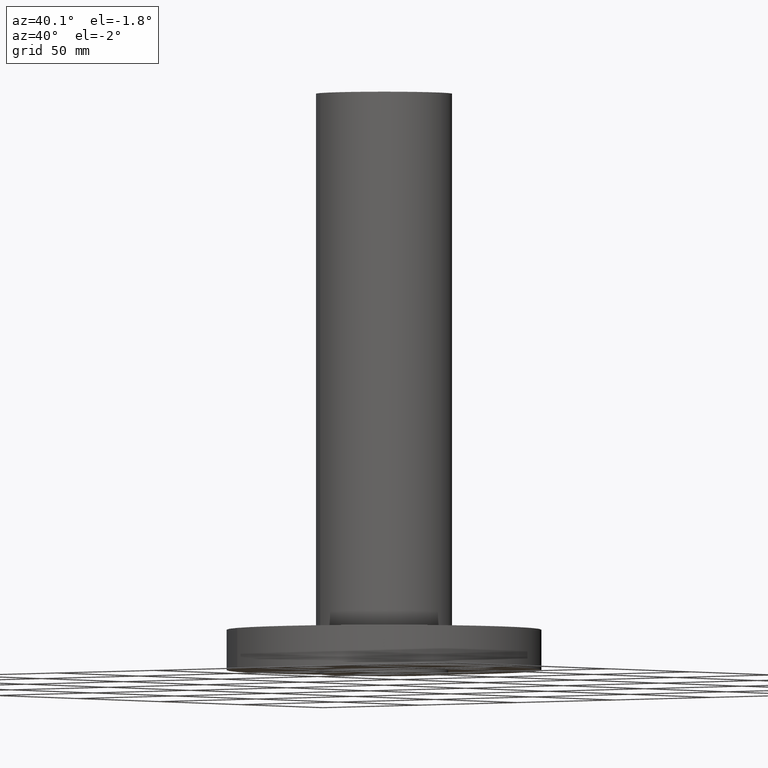
[diagram: clean part render]
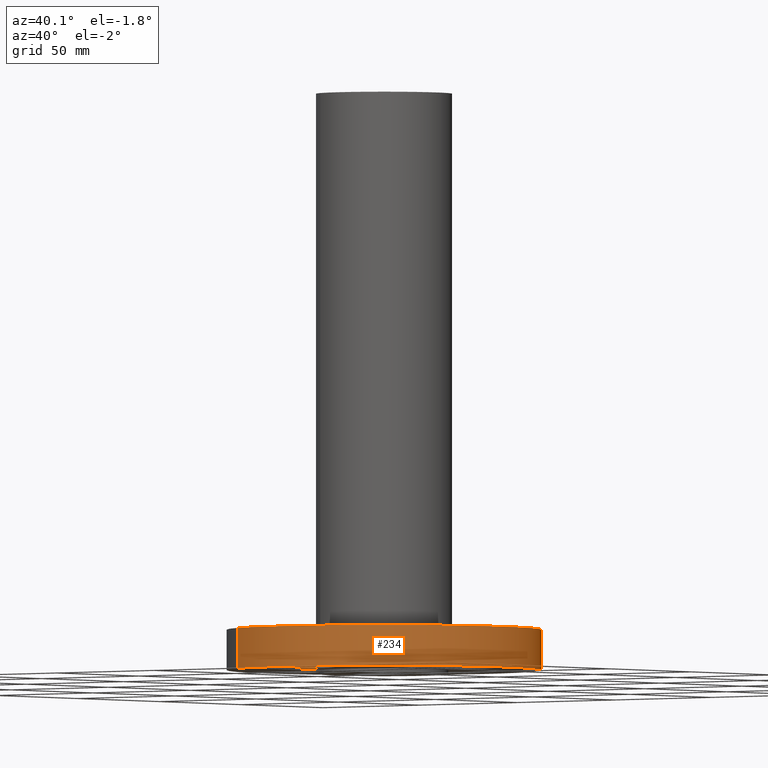
[diagram: same view with one face highlighted and labeled with its STEP entity id]
A machine part, auxiliary view. The second image highlights one B-rep face of the part: STEP entity #234.
In plain terms, the highlighted cylindrical surface (partial cylindrical patch) has radius 61.976 mm, axis along (0, 0, -1).
Its self-contained STEP definition (entity closure, byte-faithful):
#91=AXIS2_PLACEMENT_3D('Circle Axis2P3D',#89,#90,$) ;
#195=AXIS2_PLACEMENT_3D('Cylinder Axis2P3D',#192,#193,#194) ;
#225=AXIS2_PLACEMENT_3D('Circle Axis2P3D',#223,#224,$) ;
#84=CARTESIAN_POINT('Vertex',(-1.1697983142,-2.14130145102,0.)) ;
#86=CARTESIAN_POINT('Vertex',(1.1697983142,2.14130145102,0.)) ;
#89=CARTESIAN_POINT('Axis2P3D Location',(0.,0.,0.)) ;
#192=CARTESIAN_POINT('Axis2P3D Location',(0.,0.,4.43750000002)) ;
#197=CARTESIAN_POINT('Line Origine',(-1.1697983142,-2.14130145102,0.313750000001)) ;
#201=CARTESIAN_POINT('Vertex',(-1.1697983142,-2.14130145102,0.627500000003)) ;
#208=CARTESIAN_POINT('Vertex',(1.1697983142,2.14130145102,0.627500000003)) ;
#211=CARTESIAN_POINT('Line Origine',(1.1697983142,2.14130145102,0.313750000001)) ;
#223=CARTESIAN_POINT('Axis2P3D Location',(0.,0.,0.627500000003)) ;
#90=DIRECTION('Axis2P3D Direction',(0.,0.,-0.0393700787402)) ;
#193=DIRECTION('Axis2P3D Direction',(0.,0.,-0.0393700787402)) ;
#194=DIRECTION('Axis2P3D XDirection',(0.0188750212049,0.0345504945626,0.)) ;
#198=DIRECTION('Vector Direction',(0.,0.,-0.0393700787402)) ;
#212=DIRECTION('Vector Direction',(0.,0.,-0.0393700787402)) ;
#224=DIRECTION('Axis2P3D Direction',(0.,0.,-0.0393700787402)) ;
#199=VECTOR('Line Direction',#198,0.0393700787402) ;
#213=VECTOR('Line Direction',#212,0.0393700787402) ;
#229=ORIENTED_EDGE('',*,*,#93,.F.) ;
#230=ORIENTED_EDGE('',*,*,#215,.T.) ;
#231=ORIENTED_EDGE('',*,*,#227,.T.) ;
#232=ORIENTED_EDGE('',*,*,#203,.F.) ;
#234=ADVANCED_FACE('PartBody',(#233),#196,.T.) ;
#92=CIRCLE('generated circle',#91,2.44000000001) ;
#226=CIRCLE('generated circle',#225,2.44000000001) ;
#196=CYLINDRICAL_SURFACE('generated cylinder',#195,2.44000000001) ;
#93=EDGE_CURVE('',#87,#85,#92,.T.) ;
#203=EDGE_CURVE('',#85,#202,#200,.F.) ;
#215=EDGE_CURVE('',#87,#209,#214,.F.) ;
#227=EDGE_CURVE('',#209,#202,#226,.T.) ;
#228=EDGE_LOOP('',(#229,#230,#231,#232)) ;
#233=FACE_OUTER_BOUND('',#228,.T.) ;
#200=LINE('Line',#197,#199) ;
#214=LINE('Line',#211,#213) ;
#85=VERTEX_POINT('',#84) ;
#87=VERTEX_POINT('',#86) ;
#202=VERTEX_POINT('',#201) ;
#209=VERTEX_POINT('',#208) ;